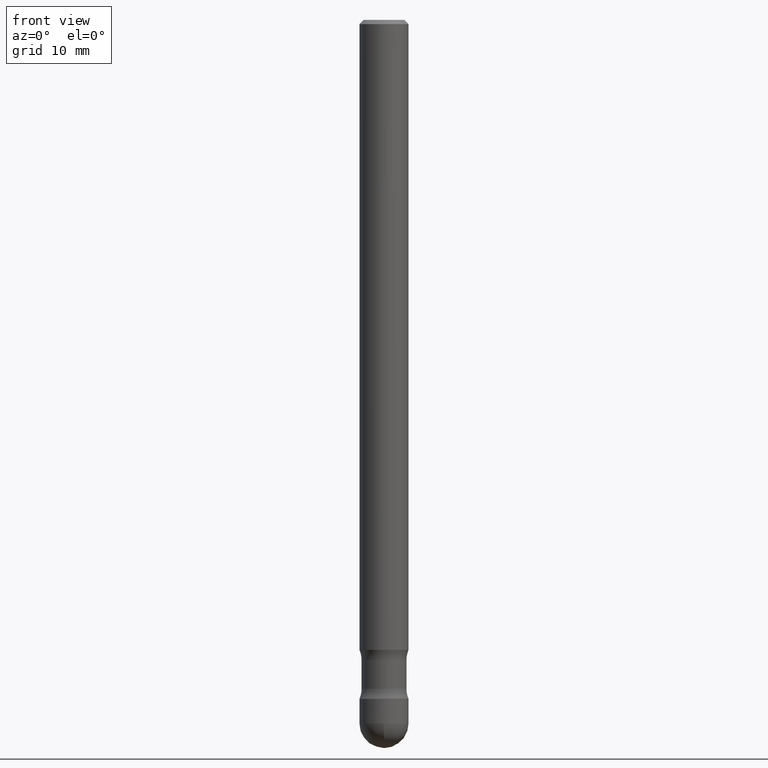
[diagram: clean part render]
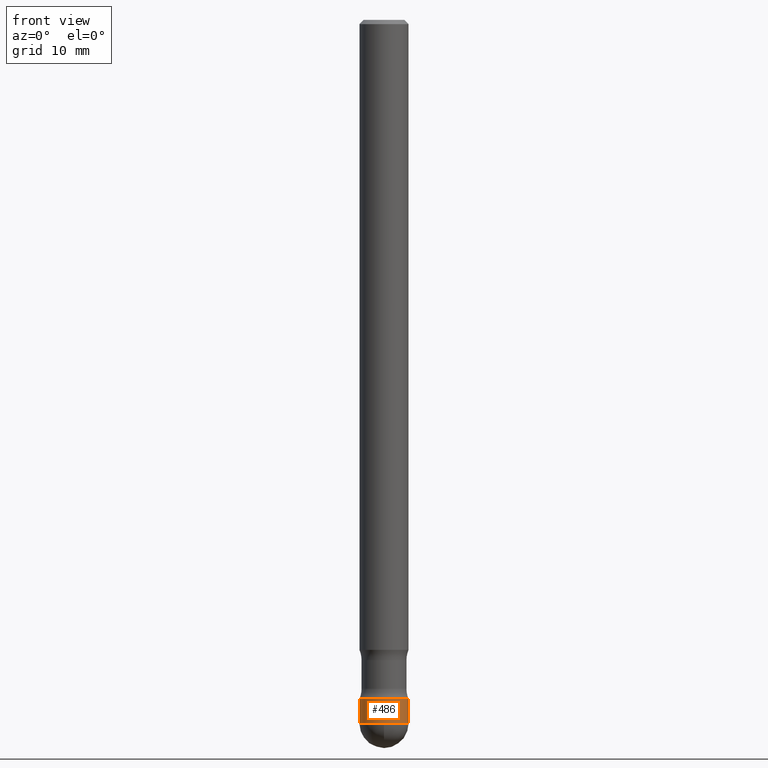
[diagram: same view with one face highlighted and labeled with its STEP entity id]
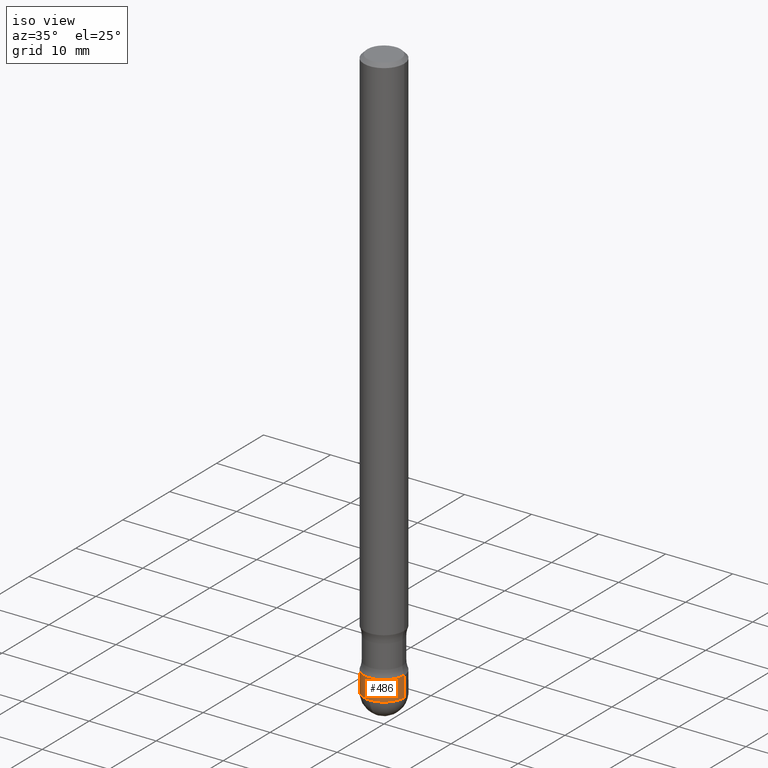
[diagram: same view with one face highlighted and labeled with its STEP entity id]
A machine part, front view. The second image highlights one B-rep face of the part: STEP entity #486.
A second angle (iso view) of the same face is appended — the face is thin or edge-on in the first view.
In plain terms, the highlighted cylindrical surface (edge-blend (fillet) strip) has radius 2.9997 mm, axis along (-0, 0, 1).
Its self-contained STEP definition (entity closure, byte-faithful):
#14 = CARTESIAN_POINT ( 'NONE',  ( 8.279868283981634472E-29, -1.182145751705512057E-14, -3.385799999999999699 ) ) ;
#18 = CYLINDRICAL_SURFACE ( 'NONE', #202, 0.1180999999999994415 ) ;
#26 = VECTOR ( 'NONE', #343, 39.37007874015748143 ) ;
#54 = CARTESIAN_POINT ( 'NONE',  ( -0.1180999999999994415, 8.391509709326743514E-16, -5.809262341591016458E-30 ) ) ;
#80 = DIRECTION ( 'NONE',  ( 1.000000000000000000, -6.982962677686272233E-15, 0.000000000000000000 ) ) ;
#87 = CARTESIAN_POINT ( 'NONE',  ( -0.1180999999999994693, -1.077613457306376004E-14, -3.385799999999999699 ) ) ;
#114 = VERTEX_POINT ( 'NONE', #249 ) ;
#115 = LINE ( 'NONE', #156, #26 ) ;
#134 = VERTEX_POINT ( 'NONE', #435 ) ;
#149 = CARTESIAN_POINT ( 'NONE',  ( -0.1180999999999994138, -1.077613457306376004E-14, -3.267699999999999605 ) ) ;
#154 = CIRCLE ( 'NONE', #489, 0.1180999999999994138 ) ;
#156 = CARTESIAN_POINT ( 'NONE',  ( 0.1180999999999994415, -8.246878922347442197E-16, 5.758764772214972414E-30 ) ) ;
#162 = EDGE_CURVE ( 'NONE', #114, #134, #358, .T. ) ;
#180 = DIRECTION ( 'NONE',  ( 1.000000000000000000, -6.982962677686272233E-15, 0.000000000000000000 ) ) ;
#190 = DIRECTION ( 'NONE',  ( -2.445468806185136597E-29, 3.491481338843145583E-15, 1.000000000000000000 ) ) ;
#194 = CARTESIAN_POINT ( 'NONE',  ( 0.1180999999999994138, -1.223380146317248997E-14, -3.267699999999999605 ) ) ;
#202 = AXIS2_PLACEMENT_3D ( 'NONE', #276, #190, #376 ) ;
#208 = AXIS2_PLACEMENT_3D ( 'NONE', #14, #362, #180 ) ;
#215 = EDGE_LOOP ( 'NONE', ( #546, #357, #242, #432, #503 ) ) ;
#242 = ORIENTED_EDGE ( 'NONE', *, *, #162, .T. ) ;
#249 = CARTESIAN_POINT ( 'NONE',  ( -8.246878922346650378E-16, -0.1181000000000117789, -3.385799999999999255 ) ) ;
#275 = LINE ( 'NONE', #54, #521 ) ;
#276 = CARTESIAN_POINT ( 'NONE',  ( 0.000000000000000000, 0.000000000000000000, 0.000000000000000000 ) ) ;
#296 = AXIS2_PLACEMENT_3D ( 'NONE', #485, #390, #80 ) ;
#334 = FACE_OUTER_BOUND ( 'NONE', #215, .T. ) ;
#343 = DIRECTION ( 'NONE',  ( -2.445468806185136877E-29, 3.491481338843145188E-15, 1.000000000000000000 ) ) ;
#354 = EDGE_CURVE ( 'NONE', #365, #114, #468, .T. ) ;
#357 = ORIENTED_EDGE ( 'NONE', *, *, #354, .T. ) ;
#358 = CIRCLE ( 'NONE', #296, 0.1180999999999994554 ) ;
#362 = DIRECTION ( 'NONE',  ( -2.445468806185136597E-29, 3.491481338843145583E-15, 1.000000000000000000 ) ) ;
#365 = VERTEX_POINT ( 'NONE', #87 ) ;
#376 = DIRECTION ( 'NONE',  ( 1.000000000000000000, -6.982962677686266711E-15, 4.876176775795935232E-29 ) ) ;
#386 = DIRECTION ( 'NONE',  ( 1.000000000000000000, -6.982962677686274599E-15, 0.000000000000000000 ) ) ;
#390 = DIRECTION ( 'NONE',  ( -2.445468806185136597E-29, 3.491481338843145583E-15, 1.000000000000000000 ) ) ;
#401 = DIRECTION ( 'NONE',  ( -2.445468806185136597E-29, 3.491481338843145583E-15, 1.000000000000000000 ) ) ;
#432 = ORIENTED_EDGE ( 'NONE', *, *, #551, .T. ) ;
#435 = CARTESIAN_POINT ( 'NONE',  ( 0.1180999999999994693, -1.243997343623117940E-14, -3.385799999999999699 ) ) ;
#460 = DIRECTION ( 'NONE',  ( -2.445468806185136877E-29, 3.491481338843145188E-15, 1.000000000000000000 ) ) ;
#468 = CIRCLE ( 'NONE', #208, 0.1180999999999994554 ) ;
#485 = CARTESIAN_POINT ( 'NONE',  ( 8.279868283981634472E-29, -1.182145751705512057E-14, -3.385799999999999699 ) ) ;
#486 = ADVANCED_FACE ( 'NONE', ( #334 ), #18, .T. ) ;
#489 = AXIS2_PLACEMENT_3D ( 'NONE', #553, #401, #386 ) ;
#497 = EDGE_CURVE ( 'NONE', #365, #528, #275, .T. ) ;
#503 = ORIENTED_EDGE ( 'NONE', *, *, #543, .F. ) ;
#521 = VECTOR ( 'NONE', #460, 39.37007874015748143 ) ;
#528 = VERTEX_POINT ( 'NONE', #149 ) ;
#534 = VERTEX_POINT ( 'NONE', #194 ) ;
#543 = EDGE_CURVE ( 'NONE', #528, #534, #154, .T. ) ;
#546 = ORIENTED_EDGE ( 'NONE', *, *, #497, .F. ) ;
#551 = EDGE_CURVE ( 'NONE', #134, #534, #115, .T. ) ;
#553 = CARTESIAN_POINT ( 'NONE',  ( 7.991058417971169471E-29, -1.140911357093774486E-14, -3.267699999999999605 ) ) ;